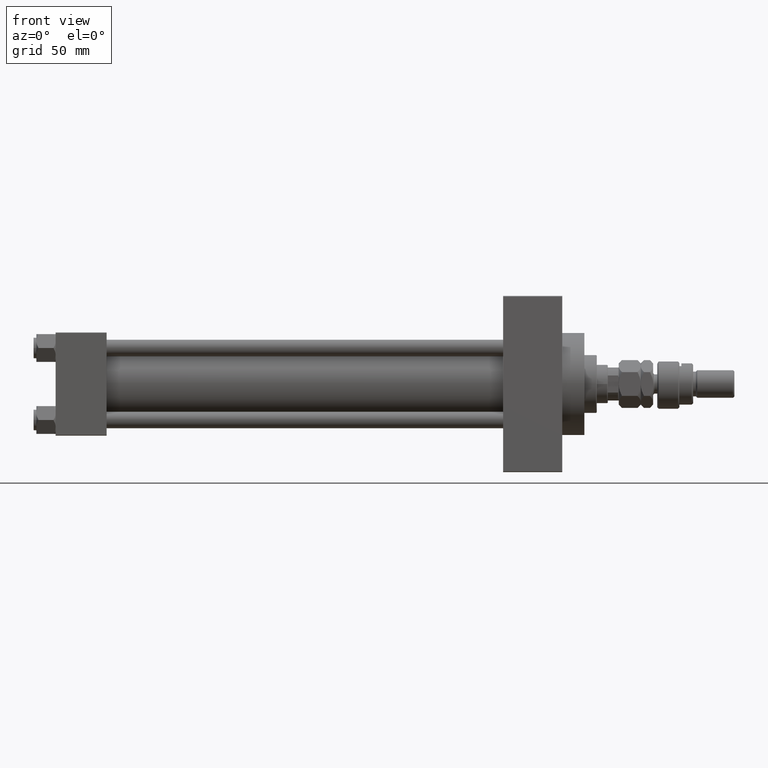
[diagram: clean part render]
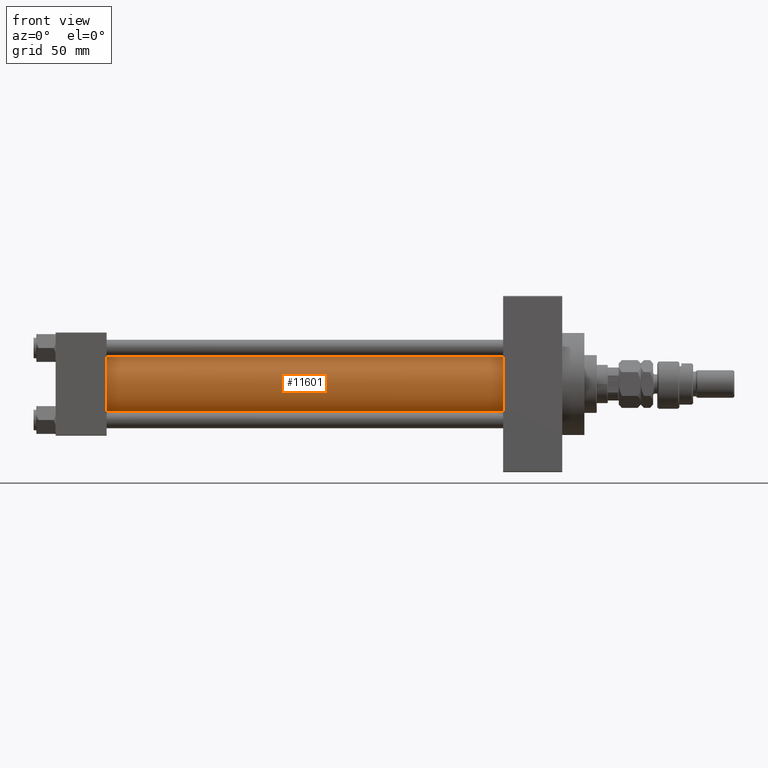
[diagram: same view with one face highlighted and labeled with its STEP entity id]
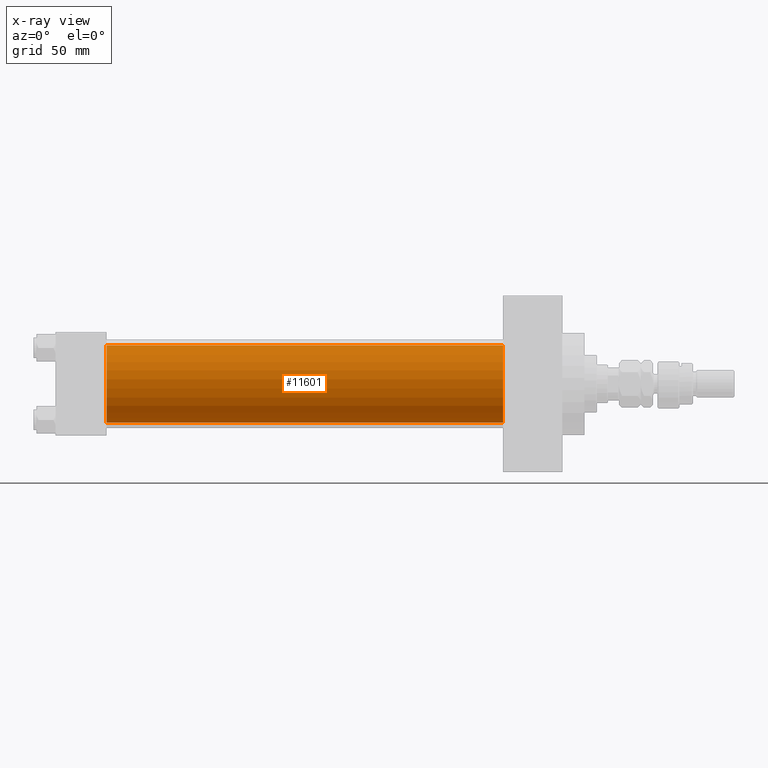
[diagram: x-ray of the same camera — body ghosted, the highlighted face saturated]
A machine part, front view. The second image highlights one B-rep face of the part: STEP entity #11601.
The next image is the same camera in x-ray: the body ghosted, the highlighted face saturated — about 0% of this face is hidden behind the body in this view.
In plain terms, the highlighted cylindrical surface (partial cylindrical patch) has radius 28 mm, axis along (-1, -0, -0).
Its self-contained STEP definition (entity closure, byte-faithful):
#4137 = EDGE_CURVE ( 'NONE', #29927, #27135, #7917, .T. ) ;
#4654 = ORIENTED_EDGE ( 'NONE', *, *, #10551, .T. ) ;
#7040 = AXIS2_PLACEMENT_3D ( 'NONE', #15387, #43565, #26996 ) ;
#7211 = CARTESIAN_POINT ( 'NONE',  ( 324.9999999999999432, 8.269258236473784371E-16, -28.00000000000000000 ) ) ;
#7425 = ORIENTED_EDGE ( 'NONE', *, *, #4137, .F. ) ;
#7917 = CIRCLE ( 'NONE', #7040, 28.00000000000000000 ) ;
#8391 = CARTESIAN_POINT ( 'NONE',  ( 36.99999999999997868, -2.602085213965210642E-15, 28.00000000000000000 ) ) ;
#10302 = CYLINDRICAL_SURFACE ( 'NONE', #15634, 28.00000000000000000 ) ;
#10551 = EDGE_CURVE ( 'NONE', #29927, #35658, #14314, .T. ) ;
#11601 = ADVANCED_FACE ( 'NONE', ( #13751 ), #10302, .T. ) ;
#13751 = FACE_OUTER_BOUND ( 'NONE', #40846, .T. ) ;
#14314 = LINE ( 'NONE', #25936, #38430 ) ;
#15387 = CARTESIAN_POINT ( 'NONE',  ( 324.9999999999999432, -2.602085213965210642E-15, 0.000000000000000000 ) ) ;
#15634 = AXIS2_PLACEMENT_3D ( 'NONE', #29847, #21403, #45893 ) ;
#17716 = LINE ( 'NONE', #49858, #26956 ) ;
#17876 = CARTESIAN_POINT ( 'NONE',  ( 36.99999999999997868, -2.602085213965210642E-15, 0.000000000000000000 ) ) ;
#21403 = DIRECTION ( 'NONE',  ( -1.000000000000000000, -0.000000000000000000, -0.000000000000000000 ) ) ;
#23698 = ORIENTED_EDGE ( 'NONE', *, *, #38314, .T. ) ;
#25936 = CARTESIAN_POINT ( 'NONE',  ( 324.9999999999999432, -2.602085213965210642E-15, 28.00000000000000000 ) ) ;
#26590 = CIRCLE ( 'NONE', #33341, 28.00000000000000000 ) ;
#26956 = VECTOR ( 'NONE', #45897, 1000.000000000000000 ) ;
#26996 = DIRECTION ( 'NONE',  ( 0.000000000000000000, 0.000000000000000000, -1.000000000000000000 ) ) ;
#27135 = VERTEX_POINT ( 'NONE', #7211 ) ;
#29847 = CARTESIAN_POINT ( 'NONE',  ( 324.9999999999999432, -2.602085213965210642E-15, 0.000000000000000000 ) ) ;
#29895 = DIRECTION ( 'NONE',  ( -1.000000000000000000, -0.000000000000000000, -0.000000000000000000 ) ) ;
#29927 = VERTEX_POINT ( 'NONE', #44771 ) ;
#33341 = AXIS2_PLACEMENT_3D ( 'NONE', #17876, #38669, #38933 ) ;
#35658 = VERTEX_POINT ( 'NONE', #8391 ) ;
#38314 = EDGE_CURVE ( 'NONE', #35658, #39162, #26590, .T. ) ;
#38430 = VECTOR ( 'NONE', #29895, 1000.000000000000000 ) ;
#38669 = DIRECTION ( 'NONE',  ( 1.000000000000000000, -0.000000000000000000, 0.000000000000000000 ) ) ;
#38933 = DIRECTION ( 'NONE',  ( 0.000000000000000000, 0.000000000000000000, 1.000000000000000000 ) ) ;
#39162 = VERTEX_POINT ( 'NONE', #42689 ) ;
#40846 = EDGE_LOOP ( 'NONE', ( #43289, #7425, #4654, #23698 ) ) ;
#42689 = CARTESIAN_POINT ( 'NONE',  ( 36.99999999999997868, 8.269258236473784371E-16, -28.00000000000000000 ) ) ;
#43289 = ORIENTED_EDGE ( 'NONE', *, *, #50238, .F. ) ;
#43565 = DIRECTION ( 'NONE',  ( 1.000000000000000000, 0.000000000000000000, 0.000000000000000000 ) ) ;
#44771 = CARTESIAN_POINT ( 'NONE',  ( 324.9999999999999432, -2.602085213965210642E-15, 28.00000000000000000 ) ) ;
#45893 = DIRECTION ( 'NONE',  ( 0.000000000000000000, 0.000000000000000000, 1.000000000000000000 ) ) ;
#45897 = DIRECTION ( 'NONE',  ( -1.000000000000000000, -0.000000000000000000, -0.000000000000000000 ) ) ;
#49858 = CARTESIAN_POINT ( 'NONE',  ( 324.9999999999999432, 8.269258236473784371E-16, -28.00000000000000000 ) ) ;
#50238 = EDGE_CURVE ( 'NONE', #27135, #39162, #17716, .T. ) ;